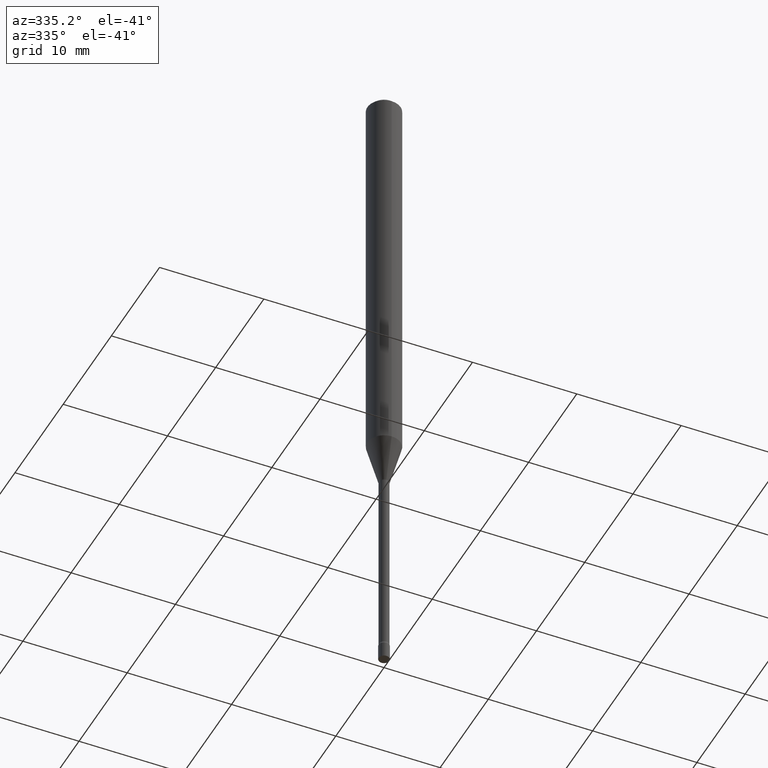
[diagram: clean part render]
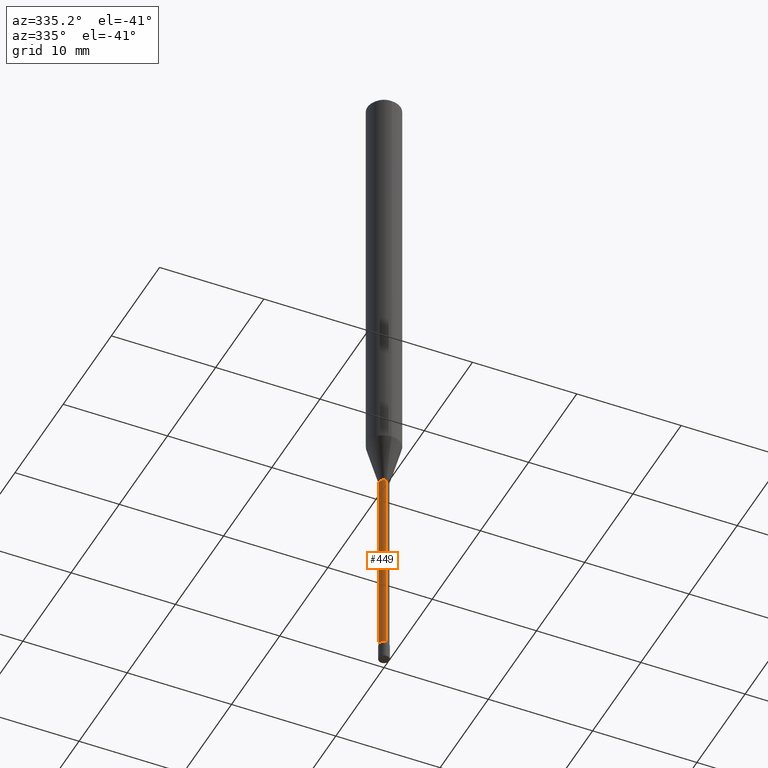
[diagram: same view with one face highlighted and labeled with its STEP entity id]
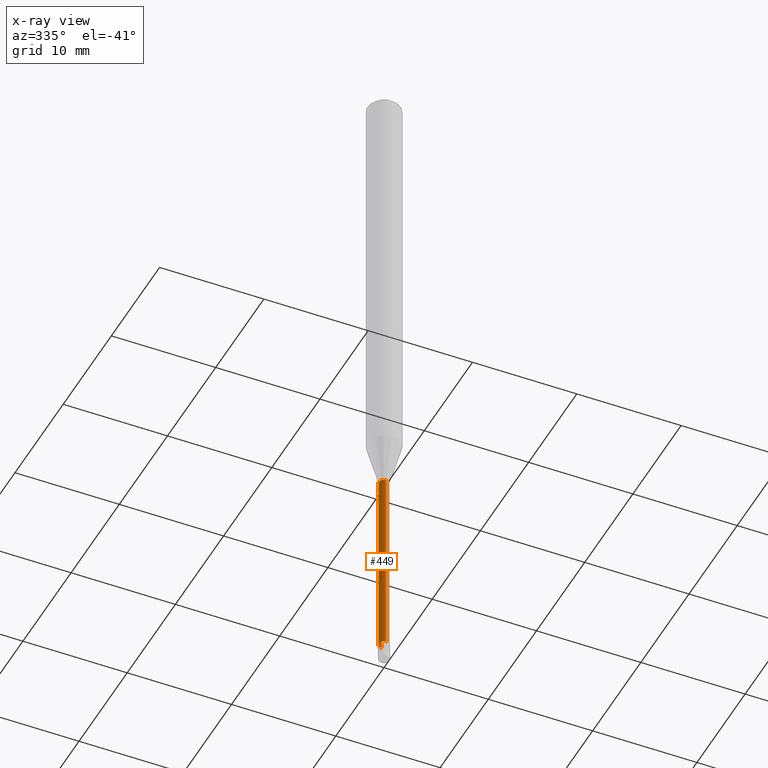
[diagram: x-ray of the same camera — body ghosted, the highlighted face saturated]
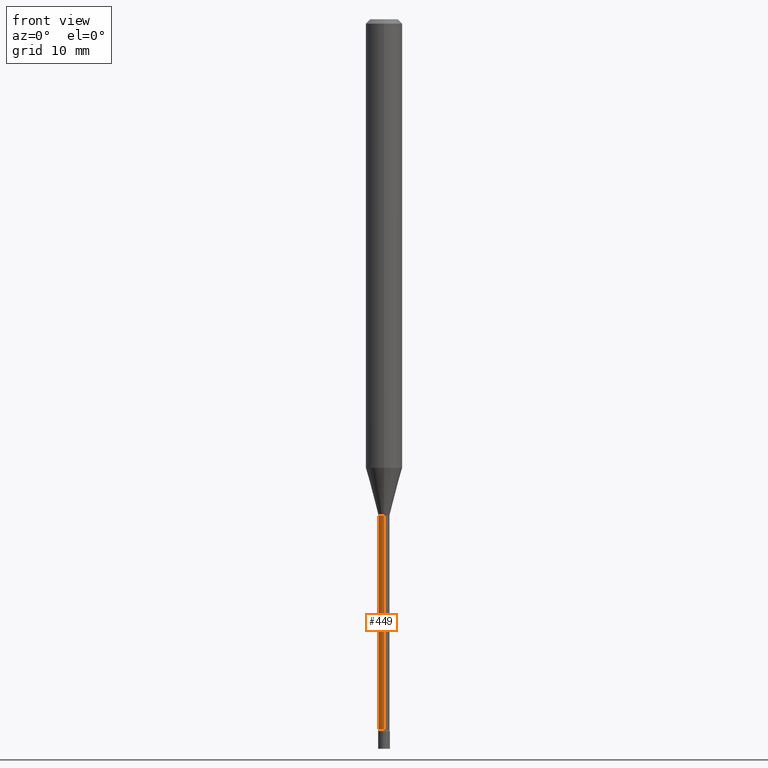
[diagram: same view with one face highlighted and labeled with its STEP entity id]
A machine part, auxiliary view. The second image highlights one B-rep face of the part: STEP entity #449.
The next image is the same camera in x-ray: the body ghosted, the highlighted face saturated — about 0% of this face is hidden behind the body in this view.
A second angle (front view) of the same face is appended — the face is thin or edge-on in the first view.
In plain terms, the highlighted cylindrical surface (edge-blend (fillet) strip) has radius 0.4775 mm, axis along (-0, 0, 1).
Its self-contained STEP definition (entity closure, byte-faithful):
#14 = CARTESIAN_POINT ( 'NONE',  ( -1.312796983404428095E-16, -0.01880000000000857374, -2.434121224617320944 ) ) ;
#37 = EDGE_CURVE ( 'NONE', #368, #113, #194, .T. ) ;
#39 = ORIENTED_EDGE ( 'NONE', *, *, #130, .F. ) ;
#64 = CARTESIAN_POINT ( 'NONE',  ( 1.335820343229586211E-16, 0.01879999999999405758, -1.701974787463810923 ) ) ;
#86 = CIRCLE ( 'NONE', #172, 0.01880000000000000074 ) ;
#87 = DIRECTION ( 'NONE',  ( -2.445424618103204141E-29, 3.491544618691502896E-15, 1.000000000000000000 ) ) ;
#107 = ORIENTED_EDGE ( 'NONE', *, *, #324, .F. ) ;
#113 = VERTEX_POINT ( 'NONE', #14 ) ;
#114 = CARTESIAN_POINT ( 'NONE',  ( -1.312796983404601891E-16, -0.01880000000000594043, -1.701974787463810923 ) ) ;
#119 = FACE_OUTER_BOUND ( 'NONE', #123, .T. ) ;
#123 = EDGE_LOOP ( 'NONE', ( #39, #402, #430, #107 ) ) ;
#129 = LINE ( 'NONE', #338, #145 ) ;
#130 = EDGE_CURVE ( 'NONE', #368, #196, #129, .T. ) ;
#145 = VECTOR ( 'NONE', #214, 39.37007874015748143 ) ;
#146 = AXIS2_PLACEMENT_3D ( 'NONE', #238, #245, #228 ) ;
#172 = AXIS2_PLACEMENT_3D ( 'NONE', #408, #204, #483 ) ;
#178 = CARTESIAN_POINT ( 'NONE',  ( 1.378452907375191717E-16, 0.01879999999999157692, -2.434121224617320944 ) ) ;
#180 = DIRECTION ( 'NONE',  ( -2.445424618103204141E-29, 3.491544618691502502E-15, 1.000000000000000000 ) ) ;
#194 = CIRCLE ( 'NONE', #258, 0.01880000000000007360 ) ;
#196 = VERTEX_POINT ( 'NONE', #64 ) ;
#204 = DIRECTION ( 'NONE',  ( -2.445424618103204141E-29, 3.491544618691502502E-15, 1.000000000000000000 ) ) ;
#206 = CYLINDRICAL_SURFACE ( 'NONE', #146, 0.01880000000000003543 ) ;
#214 = DIRECTION ( 'NONE',  ( -2.445424618103204141E-29, 3.491544618691502896E-15, 1.000000000000000000 ) ) ;
#228 = DIRECTION ( 'NONE',  ( -6.982962677686267499E-15, -1.000000000000000000, 3.491544618691502896E-15 ) ) ;
#231 = VERTEX_POINT ( 'NONE', #114 ) ;
#238 = CARTESIAN_POINT ( 'NONE',  ( 0.000000000000000000, 0.000000000000000000, 0.000000000000000000 ) ) ;
#245 = DIRECTION ( 'NONE',  ( -2.445424618103204141E-29, 3.491544618691502502E-15, 1.000000000000000000 ) ) ;
#248 = VECTOR ( 'NONE', #87, 39.37007874015748143 ) ;
#258 = AXIS2_PLACEMENT_3D ( 'NONE', #262, #180, #346 ) ;
#262 = CARTESIAN_POINT ( 'NONE',  ( 5.952459966126715215E-29, -8.498842863055376758E-15, -2.434121224617320944 ) ) ;
#274 = EDGE_CURVE ( 'NONE', #113, #231, #283, .T. ) ;
#283 = LINE ( 'NONE', #441, #248 ) ;
#324 = EDGE_CURVE ( 'NONE', #196, #231, #86, .T. ) ;
#338 = CARTESIAN_POINT ( 'NONE',  ( 1.335820343228990867E-16, 0.01880000000000003543, -6.564103883140037808E-17 ) ) ;
#346 = DIRECTION ( 'NONE',  ( -6.982962677686265922E-15, -1.000000000000000000, 0.000000000000000000 ) ) ;
#368 = VERTEX_POINT ( 'NONE', #178 ) ;
#402 = ORIENTED_EDGE ( 'NONE', *, *, #37, .T. ) ;
#408 = CARTESIAN_POINT ( 'NONE',  ( 4.162051044654971731E-29, -5.942520910317883342E-15, -1.701974787463810923 ) ) ;
#430 = ORIENTED_EDGE ( 'NONE', *, *, #274, .T. ) ;
#441 = CARTESIAN_POINT ( 'NONE',  ( -1.312796983405020727E-16, -0.01880000000000003543, 6.564103883140037808E-17 ) ) ;
#449 = ADVANCED_FACE ( 'NONE', ( #119 ), #206, .T. ) ;
#483 = DIRECTION ( 'NONE',  ( -6.982962677686265922E-15, -1.000000000000000000, 0.000000000000000000 ) ) ;